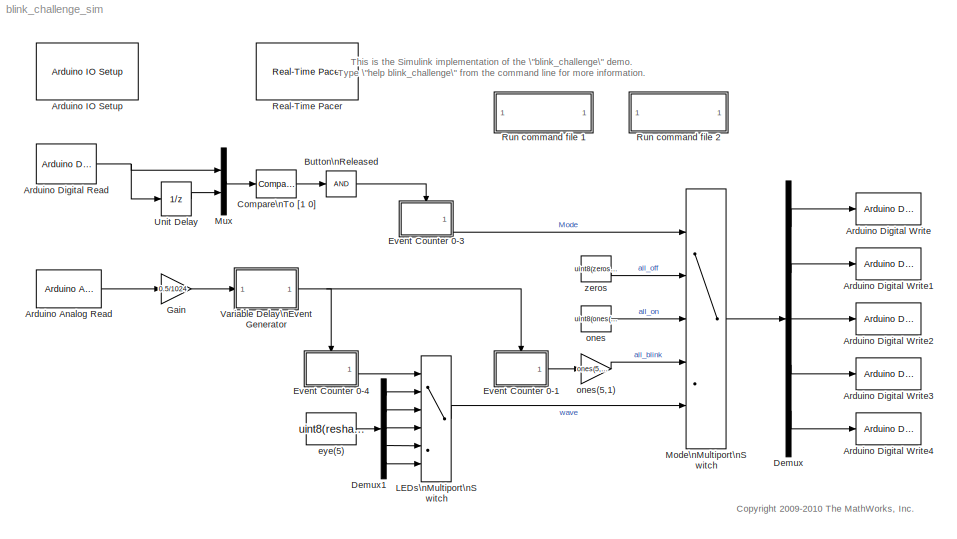
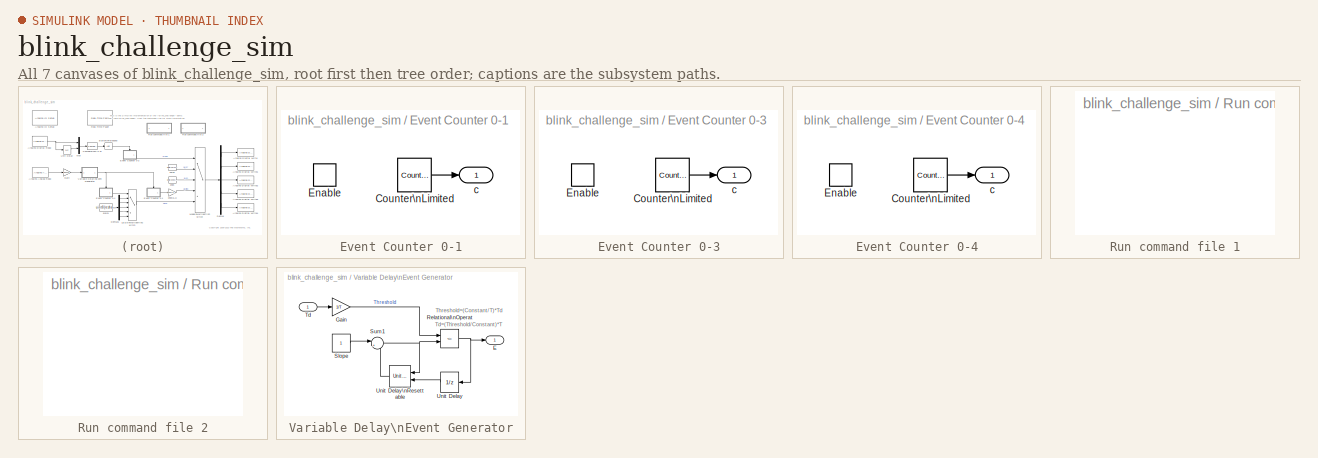
[diagram: thumbnail index - all 7 canvases of the model, root first then tree order]
MODEL blink_challenge_sim
KIND model
BLOCK [Reference] Arduino Analog Read  REF=arduino_io_lib/Arduino Analog Read
  Ports = [0, 1]
  SourceBlock = arduino_io_lib/Arduino Analog Read
  SourceType = Arduino IO Analog Read
  T = 0.1
  arduinoPin = 2
  arduinoVar = Temporary arduino variable: Arduino1
BLOCK [Reference] Arduino Digital Read  REF=arduino_io_lib/Arduino Digital Read
  Ports = [0, 1]
  SourceBlock = arduino_io_lib/Arduino Digital Read
  SourceType = Arduino IO digital read
  T = 0.1
  arduinoPin = 2
  arduinoVar = Temporary arduino variable: Arduino1
BLOCK [Reference] Arduino Digital Write  REF=arduino_io_lib/Arduino Digital Write
  Ports = [1]
  SourceBlock = arduino_io_lib/Arduino Digital Write
  SourceType = Arduino IO digital Write
  T = -1
  arduinoPin = 9
  arduinoVar = Temporary arduino variable: Arduino1
BLOCK [Reference] Arduino Digital Write1  REF=arduino_io_lib/Arduino Digital Write
  Ports = [1]
  SourceBlock = arduino_io_lib/Arduino Digital Write
  SourceType = Arduino IO digital Write
  T = -1
  arduinoPin = 10
  arduinoVar = Temporary arduino variable: Arduino1
BLOCK [Reference] Arduino Digital Write2  REF=arduino_io_lib/Arduino Digital Write
  Ports = [1]
  SourceBlock = arduino_io_lib/Arduino Digital Write
  SourceType = Arduino IO digital Write
  T = -1
  arduinoPin = 11
  arduinoVar = Temporary arduino variable: Arduino1
BLOCK [Reference] Arduino Digital Write3  REF=arduino_io_lib/Arduino Digital Write
  Ports = [1]
  SourceBlock = arduino_io_lib/Arduino Digital Write
  SourceType = Arduino IO digital Write
  T = -1
  arduinoPin = 12
  arduinoVar = Temporary arduino variable: Arduino1
BLOCK [Reference] Arduino Digital Write4  REF=arduino_io_lib/Arduino Digital Write
  Ports = [1]
  SourceBlock = arduino_io_lib/Arduino Digital Write
  SourceType = Arduino IO digital Write
  T = -1
  arduinoPin = 13
  arduinoVar = Temporary arduino variable: Arduino1
BLOCK [Reference] Arduino IO Setup  REF=arduino_io_lib/Arduino IO Setup
  Ports = []
  Priority = 3
  SourceBlock = arduino_io_lib/Arduino IO Setup
  SourceType = Arduino IO Setup
  arduinoVar = Temporary arduino variable: Arduino1
  comPort = COM9
BLOCK [Logic] Button\nReleased
  AllPortsSameDT = off
  Inputs = 1
  OutDataTypeMode = boolean
  OutDataTypeStr = boolean
  Ports = [1, 1]
BLOCK [Reference] Compare\nTo [1 0]  REF=simulink/Logic and Bit\nOperations/Compare\nTo Constant
  FunctionWithSeparateData = off
  LogicOutDataTypeMode = uint8
  Ports = [1, 1]
  RTWMemSecDataConstants = Inherit from model
  RTWMemSecDataInternal = Inherit from model
  RTWMemSecDataParameters = Inherit from model
  RTWMemSecFuncExecute = Inherit from model
  RTWMemSecFuncInitTerm = Inherit from model
  ShowPortLabels = FromPortIcon
  SourceBlock = simulink/Logic and Bit\nOperations/Compare\nTo Constant
  SourceType = Compare To Constant
  SystemSampleTime = -1
  ZeroCross = on
  const = uint8([1 0])
  relop = ==
BLOCK [Demux] Demux
  DisplayOption = bar
  Outputs = ones(5,1)
  Ports = [1, 5]
BLOCK [Demux] Demux1
  DisplayOption = bar
  Outputs = 5*ones(5,1)
  Ports = [1, 5]
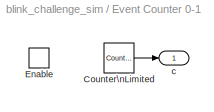
BLOCK [SubSystem] Event Counter 0-1
  FunctionWithSeparateData = off
  MaskDescription = Every time the block is enabled and evaluated, the counter increments the output variable, which wraps to zero after reaching the limit.
  MaskEnableString = on
  MaskHelp = Every time the block is enabled and evaluated, the counter increments the output variable, which wraps to zero after reaching the limit.
  MaskHideContents = off
  MaskIconFrame = on
  MaskIconOpaque = on
  MaskIconRotate = none
  MaskIconUnits = autoscale
  MaskPromptString = Upper Limit
  MaskStyleString = edit
  MaskToolTipString = on
  MaskTunableValueString = on
  MaskType = Event Counter
  MaskValueString = 1
  MaskVariables = L=@1;
  MaskVisibilityString = on
  MinAlgLoopOccurrences = off
  Opaque = off
  Ports = [0, 1, 1]
  PropExecContextOutsideSubsystem = off
  RTWSystemCode = Auto
BLOCK [Reference] Event Counter 0-1/Counter\nLimited  REF=simulink/Sources/Counter\nLimited
  FunctionWithSeparateData = off
  Ports = [0, 1]
  RTWMemSecDataConstants = Inherit from model
  RTWMemSecDataInternal = Inherit from model
  RTWMemSecDataParameters = Inherit from model
  RTWMemSecFuncExecute = Inherit from model
  RTWMemSecFuncInitTerm = Inherit from model
  ShowPortLabels = FromPortIcon
  SourceBlock = simulink/Sources/Counter\nLimited
  SourceType = Counter Limited
  SystemSampleTime = -1
  tsamp = -1
  uplimit = L
BLOCK [EnablePort] Event Counter 0-1/Enable
  Ports = []
BLOCK [Outport] Event Counter 0-1/c
  IconDisplay = Port number
  InitialOutput = 0
BLOCK [SubSystem] Event Counter 0-3
  FunctionWithSeparateData = off
  MaskDescription = Every time the block is enabled and evaluated, the counter increments the output variable, which wraps to zero after reaching the limit.
  MaskEnableString = on
  MaskHelp = Every time the block is enabled and evaluated, the counter increments the output variable, which wraps to zero after reaching the limit.
  MaskHideContents = off
  MaskIconFrame = on
  MaskIconOpaque = on
  MaskIconRotate = none
  MaskIconUnits = autoscale
  MaskPromptString = Upper Limit
  MaskStyleString = edit
  MaskToolTipString = on
  MaskTunableValueString = on
  MaskType = Event Counter
  MaskValueString = 3
  MaskVariables = L=@1;
  MaskVisibilityString = on
  MinAlgLoopOccurrences = off
  Opaque = off
  Ports = [0, 1, 1]
  PropExecContextOutsideSubsystem = off
  RTWSystemCode = Auto
BLOCK [Reference] Event Counter 0-3/Counter\nLimited  REF=simulink/Sources/Counter\nLimited
  FunctionWithSeparateData = off
  Ports = [0, 1]
  RTWMemSecDataConstants = Inherit from model
  RTWMemSecDataInternal = Inherit from model
  RTWMemSecDataParameters = Inherit from model
  RTWMemSecFuncExecute = Inherit from model
  RTWMemSecFuncInitTerm = Inherit from model
  ShowPortLabels = FromPortIcon
  SourceBlock = simulink/Sources/Counter\nLimited
  SourceType = Counter Limited
  SystemSampleTime = -1
  tsamp = -1
  uplimit = L
BLOCK [EnablePort] Event Counter 0-3/Enable
  Ports = []
BLOCK [Outport] Event Counter 0-3/c
  IconDisplay = Port number
  InitialOutput = 0
BLOCK [SubSystem] Event Counter 0-4
  FunctionWithSeparateData = off
  MaskDescription = Every time the block is enabled and evaluated, the counter increments the output variable, which wraps to zero after reaching the limit.
  MaskEnableString = on
  MaskHelp = Every time the block is enabled and evaluated, the counter increments the output variable, which wraps to zero after reaching the limit.
  MaskHideContents = off
  MaskIconFrame = on
  MaskIconOpaque = on
  MaskIconRotate = none
  MaskIconUnits = autoscale
  MaskPromptString = Upper Limit
  MaskStyleString = edit
  MaskToolTipString = on
  MaskTunableValueString = on
  MaskType = Event Counter
  MaskValueString = 4
  MaskVariables = L=@1;
  MaskVisibilityString = on
  MinAlgLoopOccurrences = off
  Opaque = off
  Ports = [0, 1, 1]
  PropExecContextOutsideSubsystem = off
  RTWSystemCode = Auto
BLOCK [Reference] Event Counter 0-4/Counter\nLimited  REF=simulink/Sources/Counter\nLimited
  FunctionWithSeparateData = off
  Ports = [0, 1]
  RTWMemSecDataConstants = Inherit from model
  RTWMemSecDataInternal = Inherit from model
  RTWMemSecDataParameters = Inherit from model
  RTWMemSecFuncExecute = Inherit from model
  RTWMemSecFuncInitTerm = Inherit from model
  ShowPortLabels = FromPortIcon
  SourceBlock = simulink/Sources/Counter\nLimited
  SourceType = Counter Limited
  SystemSampleTime = -1
  tsamp = -1
  uplimit = L
BLOCK [EnablePort] Event Counter 0-4/Enable
  Ports = []
BLOCK [Outport] Event Counter 0-4/c
  IconDisplay = Port number
  InitialOutput = 0
BLOCK [Gain] Gain
  Gain = 0.5/1024
  OutDataTypeMode = Inherit via internal rule
  OutDataTypeStr = Inherit: Inherit via internal rule
  ParamDataTypeStr = Inherit: Inherit via internal rule
  ParameterDataTypeMode = Inherit via internal rule
  SaturateOnIntegerOverflow = off
BLOCK [MultiPortSwitch] LEDs\nMultiport\nSwitch
  InputSameDT = off
  Inputs = 5
  Ports = [6, 1]
  SaturateOnIntegerOverflow = off
  zeroidx = on
BLOCK [MultiPortSwitch] Mode\nMultiport\nSwitch
  InputSameDT = off
  Inputs = 4
  Ports = [5, 1]
  SaturateOnIntegerOverflow = off
  zeroidx = on
BLOCK [Mux] Mux
  DisplayOption = bar
  Inputs = [1 1]
  Ports = [2, 1]
BLOCK [Reference] Real-Time Pacer  REF=arduino_io_lib/Real-Time Pacer
  Ports = []
  SourceBlock = arduino_io_lib/Real-Time Pacer
  SourceType = RealTime_Pacer
  simTimePerRealTime = 1
BLOCK [SubSystem] Run command file 1
  FunctionWithSeparateData = off
  MaskDisplay = disp('Stateflow \\nImplementation')
  MaskHideContents = off
  MaskIconFrame = on
  MaskIconOpaque = on
  MaskIconRotate = none
  MaskIconUnits = autoscale
  MinAlgLoopOccurrences = off
  Opaque = off
  OpenFcn = blink_challenge_sf
  Ports = []
  PropExecContextOutsideSubsystem = off
  RTWSystemCode = Auto
BLOCK [SubSystem] Run command file 2
  FunctionWithSeparateData = off
  MaskDisplay = disp('MATLAB \\nImplementation')
  MaskHideContents = off
  MaskIconFrame = on
  MaskIconOpaque = on
  MaskIconRotate = none
  MaskIconUnits = autoscale
  MinAlgLoopOccurrences = off
  Opaque = off
  OpenFcn = edit('blink_challenge.m');
  Ports = []
  PropExecContextOutsideSubsystem = off
  RTWSystemCode = Auto
BLOCK [UnitDelay] Unit Delay
  SampleTime = -1
  X0 = 0
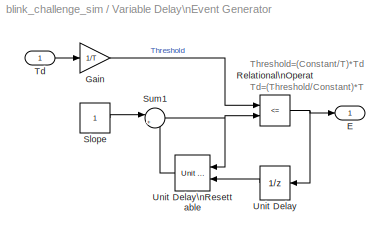
BLOCK [SubSystem] Variable Delay\nEvent Generator
  FunctionWithSeparateData = off
  MaskDescription = The input (Td) is a constant scalar expressing the desired delay between events.\nEvery Td seconds the output goes to 1 and then it goes back to zero after T seconds.
  MaskEnableString = on
  MaskHelp = The input (Td) is a constant scalar expressing the desired delay between events.\nEvery Td seconds the output goes to 1 and then it goes back to zero after T seconds.
  MaskHideContents = off
  MaskIconFrame = on
  MaskIconOpaque = on
  MaskIconRotate = none
  MaskIconUnits = autoscale
  MaskInitialization = if T<=0, error('The sampling time of the \"Variable Delay Event Generator\" block must be greater than 0'); end
  MaskPromptString = Sampling Time (T)
  MaskStyleString = edit
  MaskToolTipString = on
  MaskTunableValueString = on
  MaskType = Variable Delay Event Generator
  MaskValueString = 0.1
  MaskVariables = T=@1;
  MaskVisibilityString = on
  MinAlgLoopOccurrences = off
  Opaque = off
  Ports = [1, 1]
  PropExecContextOutsideSubsystem = off
  RTWSystemCode = Auto
BLOCK [Outport] Variable Delay\nEvent Generator/E
  IconDisplay = Port number
BLOCK [Gain] Variable Delay\nEvent Generator/Gain
  Gain = 1/T
  OutDataTypeMode = Inherit via internal rule
  OutDataTypeStr = Inherit: Inherit via internal rule
  ParamDataTypeStr = Inherit: Inherit via internal rule
  ParameterDataTypeMode = Inherit via internal rule
  SaturateOnIntegerOverflow = off
BLOCK [RelationalOperator] Variable Delay\nEvent Generator/Relational\nOperator
  InputSameDT = off
  LogicOutDataTypeMode = boolean
  Operator = <=
  OutDataTypeStr = boolean
BLOCK [Constant] Variable Delay\nEvent Generator/Slope
  SampleTime = T
BLOCK [Sum] Variable Delay\nEvent Generator/Sum1
  IconShape = round
  InputSameDT = off
  Inputs = |++
  OutDataTypeMode = Inherit via internal rule
  OutDataTypeStr = Inherit: Inherit via internal rule
  Ports = [2, 1]
  SaturateOnIntegerOverflow = off
BLOCK [Inport] Variable Delay\nEvent Generator/Td
  IconDisplay = Port number
BLOCK [UnitDelay] Variable Delay\nEvent Generator/Unit Delay
  SampleTime = -1
  X0 = uint8(0)
BLOCK [Reference] Variable Delay\nEvent Generator/Unit Delay\nResettable  REF=simulink/Additional Math\n& Discrete/Additional\nDiscrete/Unit Delay\nResettable
  FunctionWithSeparateData = off
  Ports = [2, 1]
  RTWMemSecDataConstants = Inherit from model
  RTWMemSecDataInternal = Inherit from model
  RTWMemSecDataParameters = Inherit from model
  RTWMemSecFuncExecute = Inherit from model
  RTWMemSecFuncInitTerm = Inherit from model
  ShowPortLabels = FromPortIcon
  SourceBlock = simulink/Additional Math\n& Discrete/Additional\nDiscrete/Unit Delay\nResettable
  SourceType = Unit Delay Resettable
  SystemSampleTime = -1
  tsamp = -1
  vinit = 0.0
BLOCK [Constant] eye(5)
  Value = uint8(reshape(eye(5),5*5,1))
BLOCK [Constant] ones
  Value = uint8(ones(5,1))
BLOCK [Gain] ones(5,1)
  Gain = ones(5,1)
  Multiplication = Matrix(K*u)
  OutDataTypeMode = uint8
  OutDataTypeStr = uint8
  ParamDataTypeStr = Inherit: Inherit via internal rule
  ParameterDataTypeMode = Inherit via internal rule
  SaturateOnIntegerOverflow = off
BLOCK [Constant] zeros
  Value = uint8(zeros(5,1))
ANNOTATION (root): <copyright redacted>
ANNOTATION (root): \n This is the Simulink implementation of the \"blink_challenge\" demo.\n Type \"help blink_challenge\" from the command line for more information.\n
ANNOTATION Variable Delay\nEvent Generator: Threshold=(Constant/T)*Td\nTd=(Threshold/Constant)*T
LINE Arduino Analog Read:1 -> Gain:1
NET Arduino Digital Read:1 -> Mux:1, Unit Delay:1
LINE Button\nReleased:1 -> Event Counter 0-3:enable
LINE Compare\nTo [1 0]:1 -> Button\nReleased:1
LINE Demux1:1 -> LEDs\nMultiport\nSwitch:2
LINE Demux1:2 -> LEDs\nMultiport\nSwitch:3
LINE Demux1:3 -> LEDs\nMultiport\nSwitch:4
LINE Demux1:4 -> LEDs\nMultiport\nSwitch:5
LINE Demux1:5 -> LEDs\nMultiport\nSwitch:6
LINE Demux:1 -> Arduino Digital Write:1
LINE Demux:2 -> Arduino Digital Write1:1
LINE Demux:3 -> Arduino Digital Write2:1
LINE Demux:4 -> Arduino Digital Write3:1
LINE Demux:5 -> Arduino Digital Write4:1
LINE Event Counter 0-1/Counter\nLimited:1 -> Event Counter 0-1/c:1
LINE Event Counter 0-1:1 -> ones(5,1):1
LINE Event Counter 0-3/Counter\nLimited:1 -> Event Counter 0-3/c:1
LINE Event Counter 0-3:1 -> Mode\nMultiport\nSwitch:1
LINE Event Counter 0-4/Counter\nLimited:1 -> Event Counter 0-4/c:1
LINE Event Counter 0-4:1 -> LEDs\nMultiport\nSwitch:1
LINE Gain:1 -> Variable Delay\nEvent Generator:1
LINE LEDs\nMultiport\nSwitch:1 -> Mode\nMultiport\nSwitch:5
LINE Mode\nMultiport\nSwitch:1 -> Demux:1
LINE Mux:1 -> Compare\nTo [1 0]:1
LINE Unit Delay:1 -> Mux:2
LINE Variable Delay\nEvent Generator/Gain:1 -> Variable Delay\nEvent Generator/Relational\nOperator:1
NET Variable Delay\nEvent Generator/Relational\nOperator:1 -> Variable Delay\nEvent Generator/E:1, Variable Delay\nEvent Generator/Unit Delay:1
LINE Variable Delay\nEvent Generator/Slope:1 -> Variable Delay\nEvent Generator/Sum1:1
NET Variable Delay\nEvent Generator/Sum1:1 -> Variable Delay\nEvent Generator/Relational\nOperator:2, Variable Delay\nEvent Generator/Unit Delay\nResettable:1
LINE Variable Delay\nEvent Generator/Td:1 -> Variable Delay\nEvent Generator/Gain:1
LINE Variable Delay\nEvent Generator/Unit Delay:1 -> Variable Delay\nEvent Generator/Unit Delay\nResettable:2
LINE Variable Delay\nEvent Generator/Unit Delay\nResettable:1 -> Variable Delay\nEvent Generator/Sum1:2
NET Variable Delay\nEvent Generator:1 -> Event Counter 0-1:enable, Event Counter 0-4:enable
LINE eye(5):1 -> Demux1:1
LINE ones(5,1):1 -> Mode\nMultiport\nSwitch:4
LINE ones:1 -> Mode\nMultiport\nSwitch:3
LINE zeros:1 -> Mode\nMultiport\nSwitch:2
note: NET lines group one-source signal fan-out (src -> all destinations, sorted); 1:1 wires keep LINE
